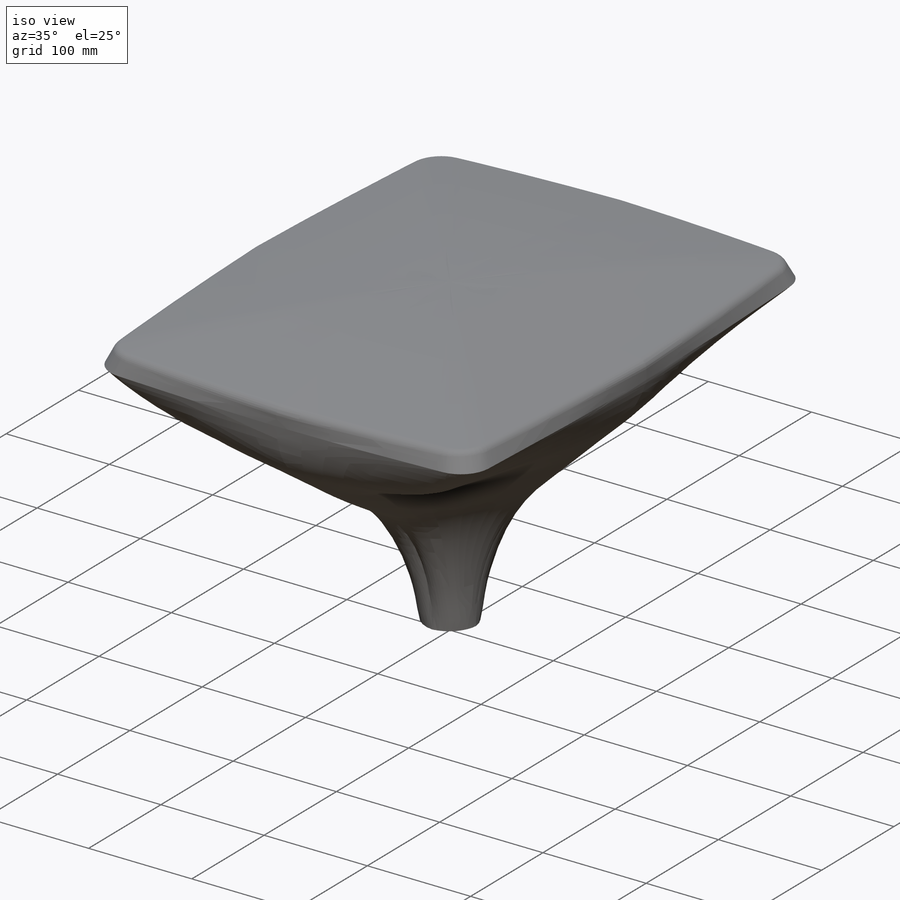
[diagram: iso view]
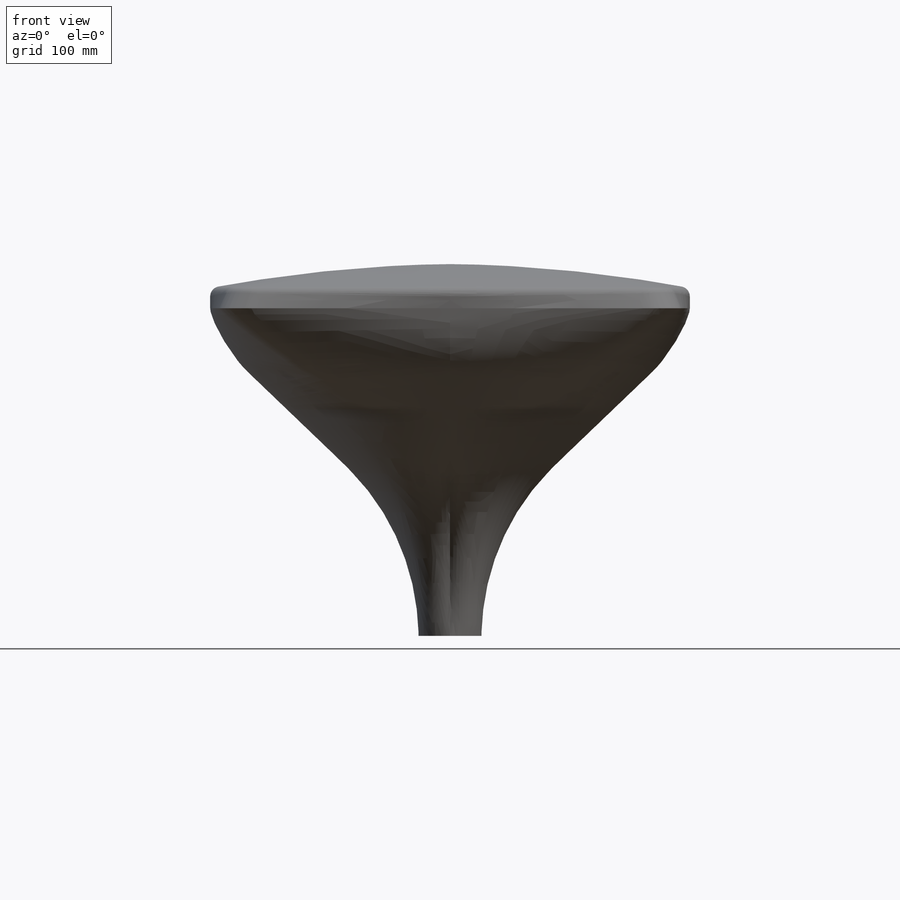
[diagram: front view]
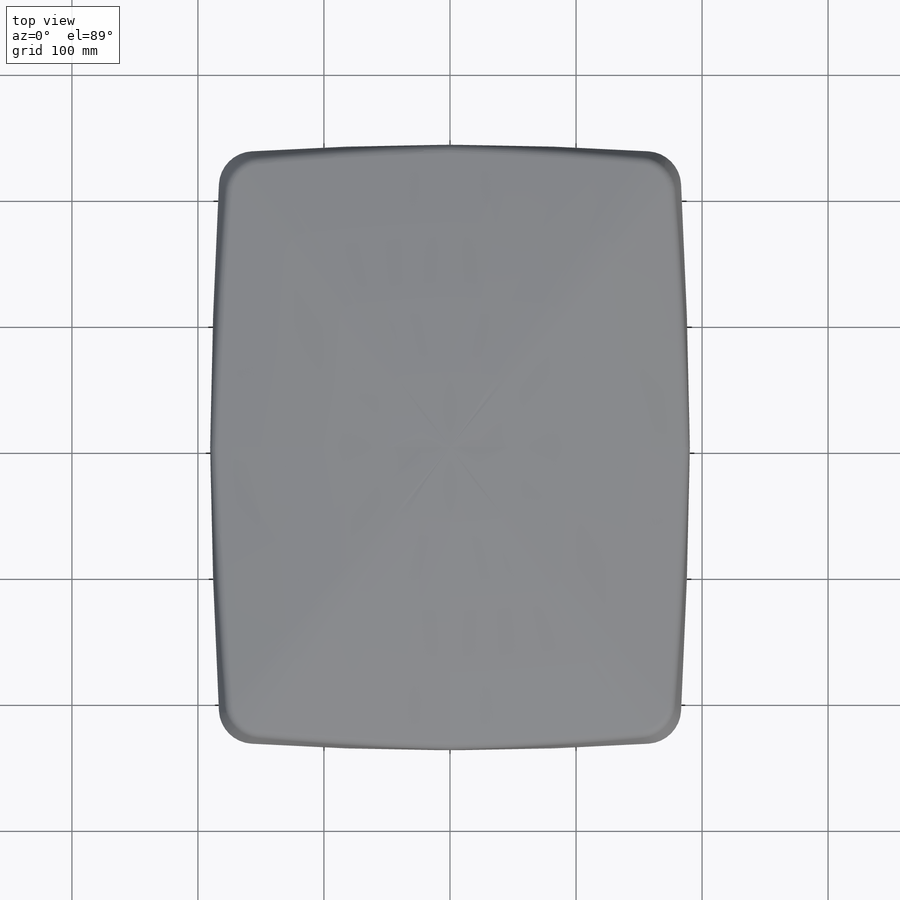
[diagram: top view]
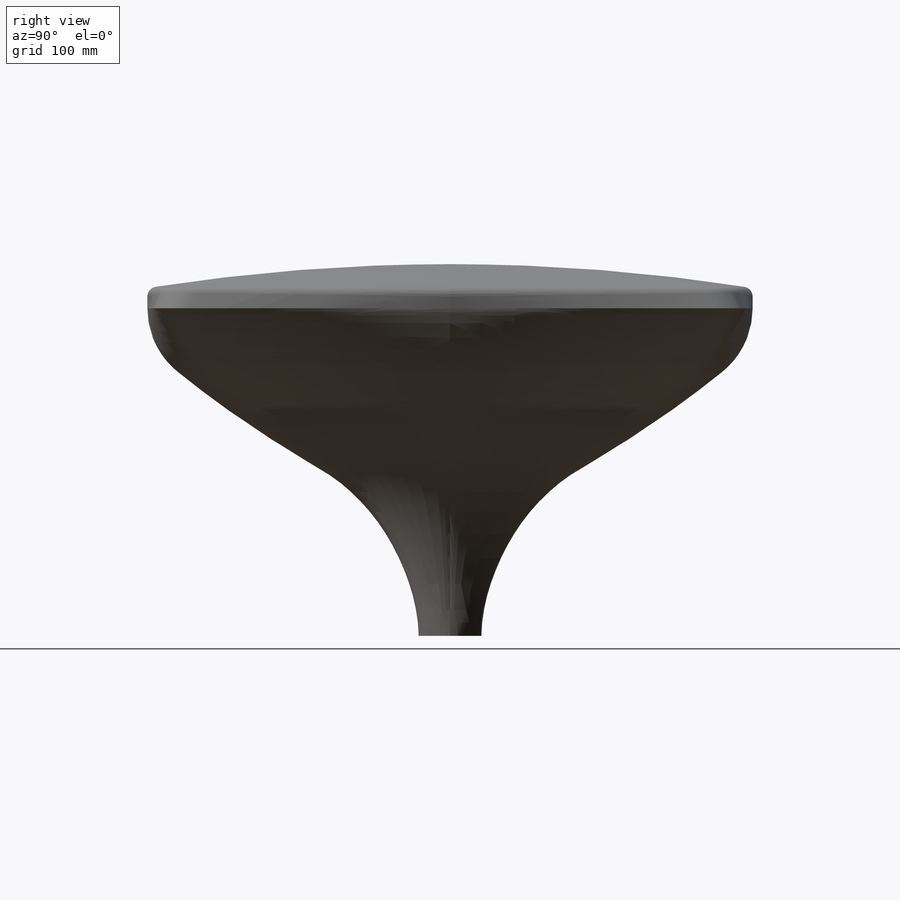
[diagram: right view]
SOLIDWORKS PART (.sldprt)
format: sldprt  version: not decoded by parser v0  size: 719,360 bytes
history: native  units: mm
features: sketch x9, plane x5, mirror x4, material x1, fillet x1 (+9 scaffold rows collapsed)
feature tree (29):
  scaffold x9  (default folders/planes/origin — collapsed)
  material  "Material <nicht festgelegt>"
  plane  "Ebene vorne"
  plane  "Ebene oben"
  plane  "Ebene rechts"
  sketch  "Skizze1"  dims[c1.D3=~1517.201142mm c1.D1=480.3mm c1.D2=240.15mm c2.D3=35.0mm c2.D4=16.0mm]
  sketch  "Skizze2"  dims[c1.D2=~1088.053876mm c1.D1=190.3mm c2.D2=~0.292596mm c2.D1=35.0mm]
  sketch  "Skizze5"  dims[c1.D3=~2442.037001mm c1.D1=190.3mm c1.D2=240.15mm c2.D3=~4.768937mm]
  mirror  "Spiegeln1"
  mirror  "Spiegeln2"
  fillet  "Verrundung1"  Radius=8mm
  sketch  "Skizze6"  dims[c1.D1=~6421.950681mm c1.D2=~131.704021mm c2.D1=25.0mm c2.D2=260.0mm c2.D3=~0.879252mm c3.D1=25.0mm]
  sketch  "Skizze7"  dims[c1.D2=~358.337468mm c1.D5=~86.599982mm c1.D1=25.0mm c2.D2=~77.419493mm c2.D3=~93.066891mm c2.D4=50.5053mm c2.D5=~9.158295mm c3.D3=260.0mm c3.D5=260.0mm]
  sketch  "Skizze10"  dims[D1=0.0mm]
  plane  "Ebene1"  Offset=80.75048mm
  sketch  "Skizze9"  dims[D1=~2.696281mm]
  sketch  "Skizze11"
  plane  "Ebene2"  Offset=256.364074mm
  sketch  "Skizze12"  dims[D1=50.0mm]
  mirror  "Spiegeln3"
  mirror  "Spiegeln4"
decode coverage: 9 of 14 modeling features carry decoded parameters
note: ~ marks probable driven/reference dimensions
note: suppression state not decoded; provenance and decode notes live in map.json
